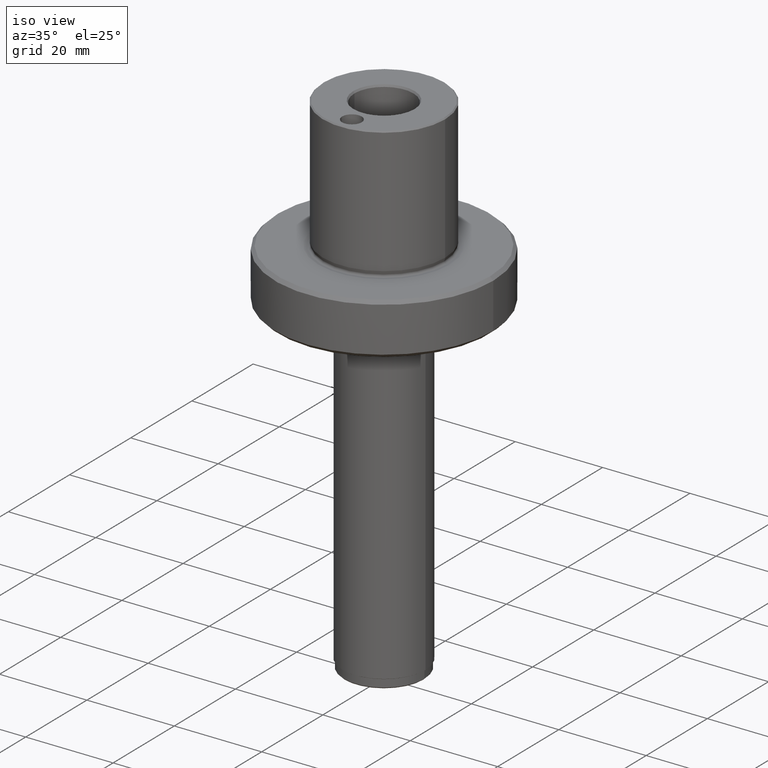
[diagram: clean part render]
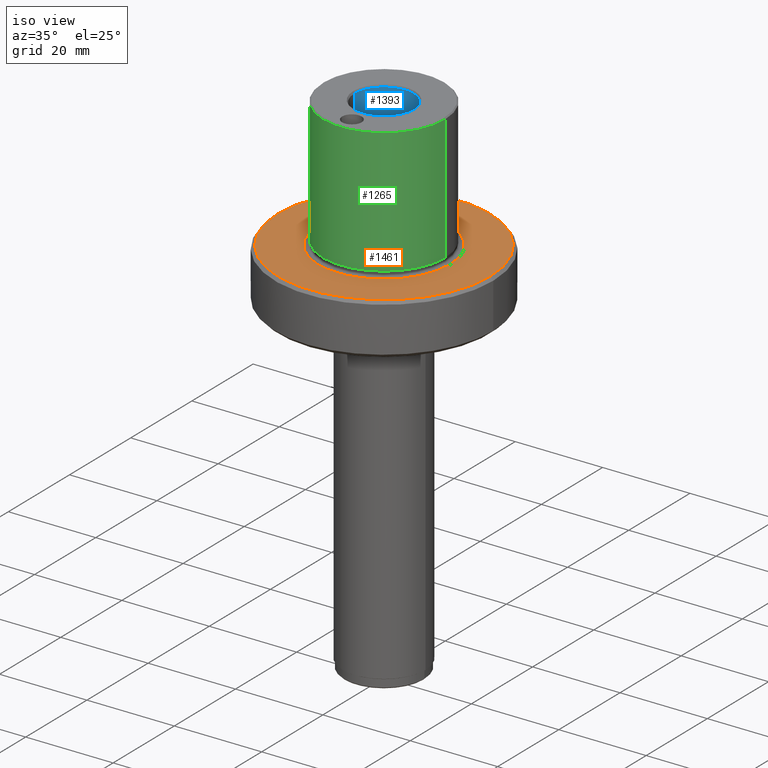
[diagram: same view with three faces highlighted in distinct colors, each labeled with its STEP entity id]
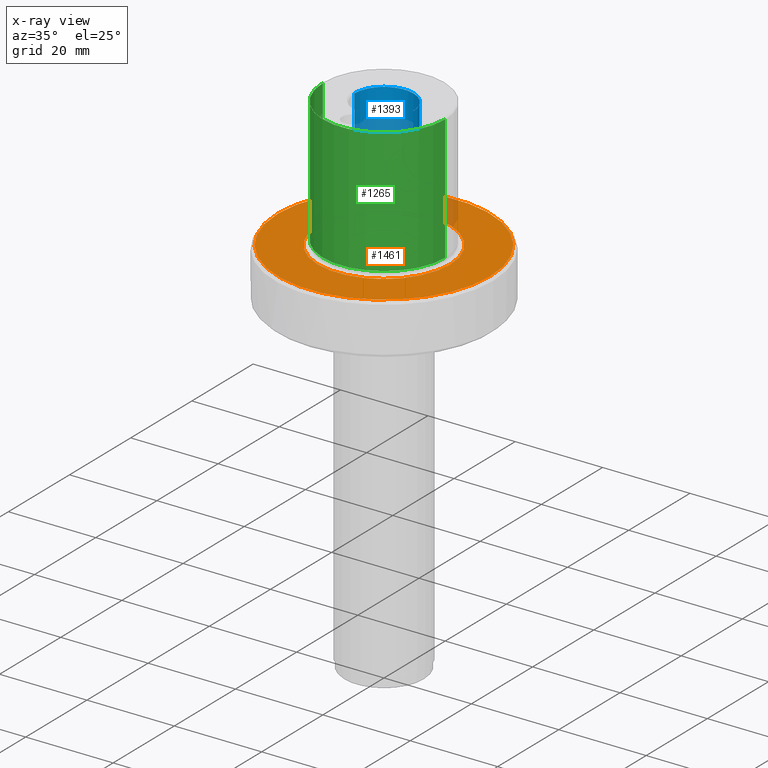
[diagram: x-ray of the same camera — body ghosted, the three highlighted faces saturated]
A machine part, iso view with three faces highlighted in distinct colors.
The next image is the same camera in x-ray (body ghosted, the three faces saturated) — at least one of them is partly hidden behind the body in this view.
Their STEP definitions:

[orange] entity #1461 — the highlighted planar face has unit normal (0, 0, 1).
#859=VERTEX_POINT('NONE',#1915);
#995=EDGE_CURVE('NONE',#1019,#1383,#2069,.T.);
#1019=VERTEX_POINT('NONE',#2096);
#1085=EDGE_CURVE('NONE',#859,#1175,#2173,.T.);
#1175=VERTEX_POINT('NONE',#2271);
#1297=EDGE_CURVE('NONE',#1175,#859,#2406,.T.);
#1383=VERTEX_POINT('NONE',#2501);
#1461=ADVANCED_FACE('NONE',(#2593,#2594),#2595,.T.);
#1505=EDGE_CURVE('NONE',#1383,#1019,#2646,.T.);
#1915=CARTESIAN_POINT('',(24.275,3.01712390422988E-015,0.0));
#2069=CIRCLE('',#3564,15.1122364103074);
#2096=CARTESIAN_POINT('',(15.1122364103074,0.0,0.0));
#2173=CIRCLE('',#3695,24.275);
#2271=CARTESIAN_POINT('',(-24.275,0.0,0.0));
#2406=CIRCLE('',#4061,24.275);
#2501=CARTESIAN_POINT('',(-15.1122364103074,1.85065407285283E-015,0.0));
#2593=FACE_OUTER_BOUND('',#4320,.T.);
#2594=FACE_BOUND('',#4321,.T.);
#2595=PLANE('',#4322);
#2646=CIRCLE('',#4416,15.1122364103074);
#3564=AXIS2_PLACEMENT_3D('',#5098,#5099,#5100);
#3695=AXIS2_PLACEMENT_3D('',#5243,#5244,#5245);
#4061=AXIS2_PLACEMENT_3D('',#5533,#5534,#5535);
#4320=EDGE_LOOP('',(#5779,#5780));
#4321=EDGE_LOOP('',(#5781,#5782));
#4322=AXIS2_PLACEMENT_3D('',#5783,#5784,#5785);
#4416=AXIS2_PLACEMENT_3D('',#5862,#5863,#5864);
#5098=CARTESIAN_POINT('',(0.0,0.0,0.0));
#5099=DIRECTION('',(0.0,0.0,1.0));
#5100=DIRECTION('',(1.0,0.0,0.0));
#5243=CARTESIAN_POINT('',(0.0,0.0,0.0));
#5244=DIRECTION('',(0.0,0.0,-1.0));
#5245=DIRECTION('',(1.0,0.0,0.0));
#5533=CARTESIAN_POINT('',(0.0,0.0,0.0));
#5534=DIRECTION('',(0.0,0.0,-1.0));
#5535=DIRECTION('',(1.0,0.0,0.0));
#5779=ORIENTED_EDGE('',*,*,#1297,.F.);
#5780=ORIENTED_EDGE('',*,*,#1085,.F.);
#5781=ORIENTED_EDGE('',*,*,#995,.F.);
#5782=ORIENTED_EDGE('',*,*,#1505,.F.);
#5783=CARTESIAN_POINT('',(0.0,14.0,0.0));
#5784=DIRECTION('',(0.0,0.0,1.0));
#5785=DIRECTION('',(1.0,0.0,0.0));
#5862=CARTESIAN_POINT('',(0.0,0.0,0.0));
#5863=DIRECTION('',(0.0,0.0,1.0));
#5864=DIRECTION('',(1.0,0.0,0.0));

[blue] entity #1393 — the highlighted cylindrical surface (edge-blend (fillet) strip) has radius 6.75 mm, axis along (-0, -0, 1).
#557=EDGE_CURVE('NONE',#799,#607,#1583,.T.);
#607=VERTEX_POINT('NONE',#1636);
#625=VERTEX_POINT('NONE',#1658);
#685=EDGE_CURVE('NONE',#817,#607,#1723,.T.);
#693=VERTEX_POINT('NONE',#1732);
#709=EDGE_CURVE('NONE',#693,#1279,#1750,.T.);
#729=EDGE_CURVE('NONE',#1279,#693,#1771,.T.);
#799=VERTEX_POINT('NONE',#1849);
#817=VERTEX_POINT('NONE',#1868);
#959=EDGE_CURVE('NONE',#625,#799,#2032,.T.);
#973=EDGE_CURVE('NONE',#625,#817,#2046,.T.);
#1279=VERTEX_POINT('NONE',#2387);
#1393=ADVANCED_FACE('NONE',(#2513,#2514),#2515,.F.);
#1583=LINE('',#2721,#2722);
#1636=CARTESIAN_POINT('',(-6.75,8.26609288830105E-016,29.5669872981078));
#1658=CARTESIAN_POINT('',(6.75,0.0,2.08166817117217E-014));
#1723=CIRCLE('',#2981,6.75);
#1732=CARTESIAN_POINT('',(-4.0,5.43714079273289,12.5));
#1750=B_SPLINE_CURVE_WITH_KNOTS('',3,(#3017,#3018,#3019,#3020,#3021,#3022,#3023,#3024,#3025,#3026,#3027,#3028,#3029,#3030,#3031,#3032,#3033,#3034,#3035,#3036,#3037,#3038,#3039,#3040,#3041,#3042,#3043,#3044,#3045,#3046,#3047,#3048,#3049,#3050),.UNSPECIFIED.,.F.,.F.,(4,2,2,2,2,2,2,2,2,2,2,2,2,2,2,2,4),(3.5762240613455E-018,0.000801164810131248,0.00160232962026249,0.00320465924052498,0.00400582405065622,0.00480698886078746,0.0056081536709187,0.00640931848104994,0.00680990088611556,0.00721048329118119,0.00801164810131243,0.00881281291144367,0.00961397772157491,0.0104151425317062,0.0112163073418374,0.0120174721519686,0.0128186369620999),.UNSPECIFIED.);
#1771=B_SPLINE_CURVE_WITH_KNOTS('',3,(#3079,#3080,#3081,#3082,#3083,#3084,#3085,#3086,#3087,#3088,#3089,#3090,#3091,#3092,#3093,#3094,#3095,#3096,#3097,#3098,#3099,#3100,#3101,#3102,#3103,#3104,#3105,#3106,#3107,#3108,#3109,#3110,#3111,#3112,#3113,#3114),.UNSPECIFIED.,.F.,.F.,(4,2,2,2,2,2,2,2,2,2,2,2,2,2,2,2,2,4),(0.0128186369620999,0.0136183009212223,0.0144179648803447,0.0152176288394672,0.0160172927985896,0.016816956757712,0.0176166207168345,0.0180164526963957,0.0184162846759569,0.0192159486350793,0.0200156125942018,0.0208152765533242,0.0216149405124466,0.0224146044715691,0.0232142684306915,0.0240139323898139,0.0248135963489364,0.0256132603080588),.UNSPECIFIED.);
#1849=CARTESIAN_POINT('',(-6.75,8.26609288830105E-016,2.08166817117217E-014));
#1868=CARTESIAN_POINT('',(6.75,0.0,29.5669872981078));
#2032=CIRCLE('',#3507,6.75);
#2046=LINE('',#3529,#3530);
#2387=CARTESIAN_POINT('',(4.0,5.43714079273289,12.5));
#2513=FACE_OUTER_BOUND('',#4206,.T.);
#2514=FACE_BOUND('',#4207,.T.);
#2515=CYLINDRICAL_SURFACE('',#4208,6.75);
#2721=CARTESIAN_POINT('',(-6.75,8.26609288830105E-016,30.0));
#2722=VECTOR('',#4548,1000.0);
#2981=AXIS2_PLACEMENT_3D('',#4699,#4700,#4701);
#3017=CARTESIAN_POINT('',(-4.0,5.43714079273289,12.5));
#3018=CARTESIAN_POINT('',(-4.0,5.43714079273289,12.7716293193081));
#3019=CARTESIAN_POINT('',(-3.97264243413586,5.4575461511676,13.0369163295426));
#3020=CARTESIAN_POINT('',(-3.86714943348433,5.53279795046982,13.5560882129483));
#3021=CARTESIAN_POINT('',(-3.78765718232362,5.5884405392578,13.811993234218));
#3022=CARTESIAN_POINT('',(-3.48490007469083,5.78584737406118,14.5312961820438));
#3023=CARTESIAN_POINT('',(-3.19281904055634,5.96030724995665,14.9627723135982));
#3024=CARTESIAN_POINT('',(-2.65361385167596,6.20967370407654,15.5038589763477));
#3025=CARTESIAN_POINT('',(-2.4536028224815,6.2923376491457,15.6695722999703));
#3026=CARTESIAN_POINT('',(-2.02678811962965,6.4425002770255,15.9581042918565));
#3027=CARTESIAN_POINT('',(-1.80043638614585,6.5101462438987,16.0814260614948));
#3028=CARTESIAN_POINT('',(-1.31954906870355,6.62437661616471,16.2850989511234));
#3029=CARTESIAN_POINT('',(-1.06166704190874,6.67113630097083,16.3656724663019));
#3030=CARTESIAN_POINT('',(-0.541174702042622,6.73337407217772,16.472114105419));
#3031=CARTESIAN_POINT('',(-0.276424108912015,6.74972012553755,16.4995277113889));
#3032=CARTESIAN_POINT('',(0.12783071866023,6.7501346151492,16.5002271632878));
#3033=CARTESIAN_POINT('',(0.264077299184511,6.74616054012537,16.4935320350058));
#3034=CARTESIAN_POINT('',(0.531334836632205,6.730386478091,16.4668272241104));
#3035=CARTESIAN_POINT('',(0.663305118021849,6.71861303605623,16.4468619723445));
#3036=CARTESIAN_POINT('',(1.05441732998955,6.67230419912436,16.3676836126484));
#3037=CARTESIAN_POINT('',(1.31154579767522,6.62603571290426,16.2880072476896));
#3038=CARTESIAN_POINT('',(1.79617354499058,6.511394800222,16.0837008642219));
#3039=CARTESIAN_POINT('',(2.02423300684526,6.44336146598244,15.9597375453366));
#3040=CARTESIAN_POINT('',(2.45417210162098,6.29217494535351,15.6692810610987));
#3041=CARTESIAN_POINT('',(2.65270081179584,6.21006912582583,15.5046789704371));
#3042=CARTESIAN_POINT('',(3.01249444841242,6.04372876151154,15.1438219513752));
#3043=CARTESIAN_POINT('',(3.17636461604254,5.95821399624911,14.9447368517073));
#3044=CARTESIAN_POINT('',(3.46306888123622,5.79627122579328,14.518213163161));
#3045=CARTESIAN_POINT('',(3.58502912971549,5.72053336340814,14.2929507109863));
#3046=CARTESIAN_POINT('',(3.78634319537353,5.58932384368832,13.8155650192155));
#3047=CARTESIAN_POINT('',(3.86625977627303,5.53342572292039,13.5596798769941));
#3048=CARTESIAN_POINT('',(3.97259758515363,5.4575849343034,13.0379168390789));
#3049=CARTESIAN_POINT('',(4.0,5.43714079273289,12.7718214083315));
#3050=CARTESIAN_POINT('',(4.0,5.43714079273289,12.5));
#3079=CARTESIAN_POINT('',(4.0,5.43714079273289,12.5));
#3080=CARTESIAN_POINT('',(4.0,5.43714079273289,12.2286878045418));
#3081=CARTESIAN_POINT('',(3.97261629308685,5.45756828429387,11.9625539196916));
#3082=CARTESIAN_POINT('',(3.86669504071269,5.53311858285698,11.4420784700812));
#3083=CARTESIAN_POINT('',(3.78712899365558,5.58880109189395,11.1864777470424));
#3084=CARTESIAN_POINT('',(3.58507408676643,5.72051461424036,10.7069772684103));
#3085=CARTESIAN_POINT('',(3.46104988656109,5.79748566440492,10.4783092301722));
#3086=CARTESIAN_POINT('',(3.17375258759419,5.95961415353245,10.0518589912322));
#3087=CARTESIAN_POINT('',(3.01204831145189,6.04396315866591,9.85562974201607));
#3088=CARTESIAN_POINT('',(2.65156721783939,6.21056494878771,9.49428537929669));
#3089=CARTESIAN_POINT('',(2.45117342784842,6.29325583157683,9.32862734538358));
#3090=CARTESIAN_POINT('',(2.0258216210914,6.44277633435963,9.04140166435049));
#3091=CARTESIAN_POINT('',(1.79941229843816,6.51048005515177,8.91796001167175));
#3092=CARTESIAN_POINT('',(1.43677302481173,6.59648520556578,8.76464097446959));
#3093=CARTESIAN_POINT('',(1.31115064008419,6.62268595391526,8.71866381747905));
#3094=CARTESIAN_POINT('',(1.05757903418054,6.66787911045494,8.64005882004698));
#3095=CARTESIAN_POINT('',(0.929331836881804,6.68699542661246,8.6072029674472));
#3096=CARTESIAN_POINT('',(0.540186442581025,6.73342116620994,8.52780863929893));
#3097=CARTESIAN_POINT('',(0.274927766109048,6.74986588492773,8.50022631923468));
#3098=CARTESIAN_POINT('',(-0.268302289464154,6.75013248925955,8.49977642432463));
#3099=CARTESIAN_POINT('',(-0.534538514107484,6.73393305723982,8.52694065530321));
#3100=CARTESIAN_POINT('',(-1.05655839196037,6.67197648428332,8.63288009703282));
#3101=CARTESIAN_POINT('',(-1.31426348953895,6.62547286387965,8.71297934311373));
#3102=CARTESIAN_POINT('',(-1.79759333204674,6.51097822162859,8.91705816566896));
#3103=CARTESIAN_POINT('',(-2.02659867833712,6.44263172341255,9.04160615973214));
#3104=CARTESIAN_POINT('',(-2.45721578828444,6.29100121573389,9.33303288188113));
#3105=CARTESIAN_POINT('',(-2.65393845495316,6.20954551371267,9.49638806749065));
#3106=CARTESIAN_POINT('',(-3.01399096912199,6.04298794038176,9.85785458351687));
#3107=CARTESIAN_POINT('',(-3.17846098326255,5.95707265933794,10.0581070764263));
#3108=CARTESIAN_POINT('',(-3.46365810291127,5.79589522307736,10.482940799466));
#3109=CARTESIAN_POINT('',(-3.58563156994821,5.7201632212022,10.7080964943534));
#3110=CARTESIAN_POINT('',(-3.78751822088379,5.58853529639716,11.1876061355556));
#3111=CARTESIAN_POINT('',(-3.86712222309922,5.53281651418232,11.4438754266164));
#3112=CARTESIAN_POINT('',(-3.97255275729286,5.45761096621235,11.962544891719));
#3113=CARTESIAN_POINT('',(-4.0,5.43714079273289,12.2288795337179));
#3114=CARTESIAN_POINT('',(-4.0,5.43714079273289,12.5));
#3507=AXIS2_PLACEMENT_3D('',#5070,#5071,#5072);
#3529=CARTESIAN_POINT('',(6.75,0.0,30.0));
#3530=VECTOR('',#5079,1000.0);
#4206=EDGE_LOOP('',(#5669,#5670,#5671,#5672));
#4207=EDGE_LOOP('',(#5673,#5674));
#4208=AXIS2_PLACEMENT_3D('',#5675,#5676,#5677);
#4548=DIRECTION('',(0.0,0.0,1.0));
#4699=CARTESIAN_POINT('',(0.0,0.0,29.5669872981078));
#4700=DIRECTION('',(0.0,0.0,1.0));
#4701=DIRECTION('',(1.0,0.0,0.0));
#5070=CARTESIAN_POINT('',(0.0,0.0,2.08166817117217E-014));
#5071=DIRECTION('',(0.0,0.0,1.0));
#5072=DIRECTION('',(1.0,0.0,0.0));
#5079=DIRECTION('',(0.0,0.0,1.0));
#5669=ORIENTED_EDGE('',*,*,#557,.F.);
#5670=ORIENTED_EDGE('',*,*,#959,.F.);
#5671=ORIENTED_EDGE('',*,*,#973,.T.);
#5672=ORIENTED_EDGE('',*,*,#685,.T.);
#5673=ORIENTED_EDGE('',*,*,#709,.T.);
#5674=ORIENTED_EDGE('',*,*,#729,.T.);
#5675=CARTESIAN_POINT('',(0.0,0.0,30.0));
#5676=DIRECTION('',(-0.0,-0.0,1.0));
#5677=DIRECTION('',(1.0,0.0,0.0));

[green] entity #1265 — the highlighted cylindrical surface (partial cylindrical patch) has radius 14 mm, axis along (-0, -0, 1).
#789=VERTEX_POINT('NONE',#1839);
#1021=EDGE_CURVE('NONE',#1163,#1413,#2098,.T.);
#1143=VERTEX_POINT('NONE',#2236);
#1163=VERTEX_POINT('NONE',#2258);
#1183=EDGE_CURVE('NONE',#1163,#789,#2280,.T.);
#1191=EDGE_CURVE('NONE',#789,#1143,#2288,.T.);
#1265=ADVANCED_FACE('NONE',(#2370),#2371,.T.);
#1329=EDGE_CURVE('NONE',#1413,#1143,#2440,.T.);
#1413=VERTEX_POINT('NONE',#2539);
#1839=CARTESIAN_POINT('',(14.0,1.71444889535133E-015,29.7425));
#2098=CIRCLE('',#3601,14.0);
#2236=CARTESIAN_POINT('',(-14.0,0.0,29.7425));
#2258=CARTESIAN_POINT('',(14.0,0.0,1.11223641030749));
#2280=LINE('',#3859,#3860);
#2288=CIRCLE('',#3872,14.0);
#2370=FACE_OUTER_BOUND('',#4011,.T.);
#2371=CYLINDRICAL_SURFACE('',#4012,14.0);
#2440=LINE('',#4115,#4116);
#2539=CARTESIAN_POINT('',(-14.0,1.71444889535133E-015,1.11223641030749));
#3601=AXIS2_PLACEMENT_3D('',#5130,#5131,#5132);
#3859=CARTESIAN_POINT('',(14.0,0.0,4.55435641862864));
#3860=VECTOR('',#5378,1000.0);
#3872=AXIS2_PLACEMENT_3D('',#5383,#5384,#5385);
#4011=EDGE_LOOP('',(#5481,#5482,#5483,#5484));
#4012=AXIS2_PLACEMENT_3D('',#5485,#5486,#5487);
#4115=CARTESIAN_POINT('',(-14.0,1.71444889535133E-015,4.55435641862864));
#4116=VECTOR('',#5575,1000.0);
#5130=CARTESIAN_POINT('',(0.0,0.0,1.11223641030749));
#5131=DIRECTION('',(0.0,0.0,-1.0));
#5132=DIRECTION('',(1.0,0.0,0.0));
#5378=DIRECTION('',(-0.0,0.0,1.0));
#5383=CARTESIAN_POINT('',(0.0,0.0,29.7425));
#5384=DIRECTION('',(0.0,0.0,-1.0));
#5385=DIRECTION('',(-1.0,0.0,0.0));
#5481=ORIENTED_EDGE('',*,*,#1329,.F.);
#5482=ORIENTED_EDGE('',*,*,#1021,.F.);
#5483=ORIENTED_EDGE('',*,*,#1183,.T.);
#5484=ORIENTED_EDGE('',*,*,#1191,.T.);
#5485=CARTESIAN_POINT('',(0.0,0.0,4.55435641862864));
#5486=DIRECTION('',(-0.0,-0.0,1.0));
#5487=DIRECTION('',(1.0,0.0,0.0));
#5575=DIRECTION('',(-0.0,0.0,1.0));